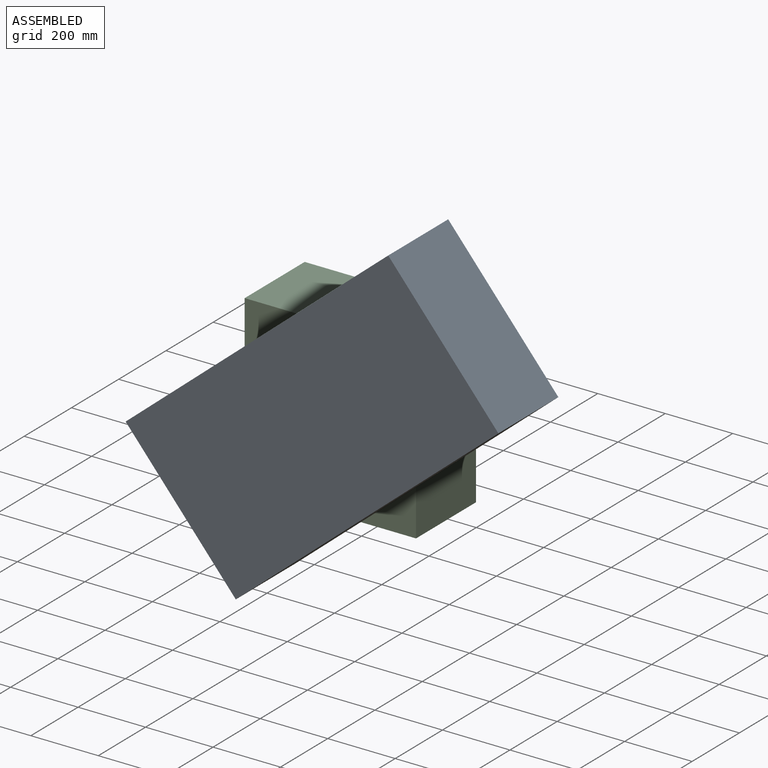
[diagram: assembled view]
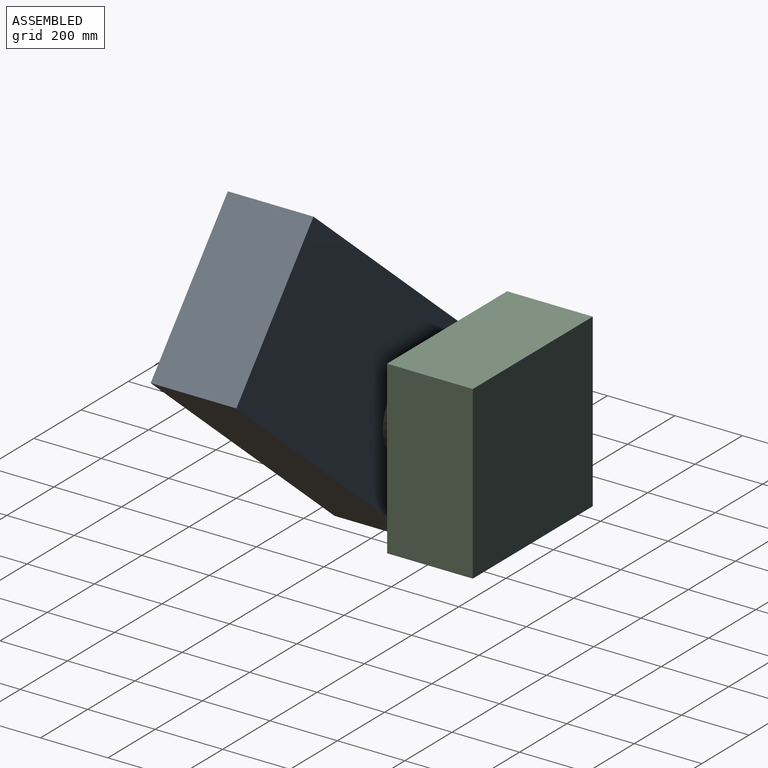
[diagram: assembled view, second angle]
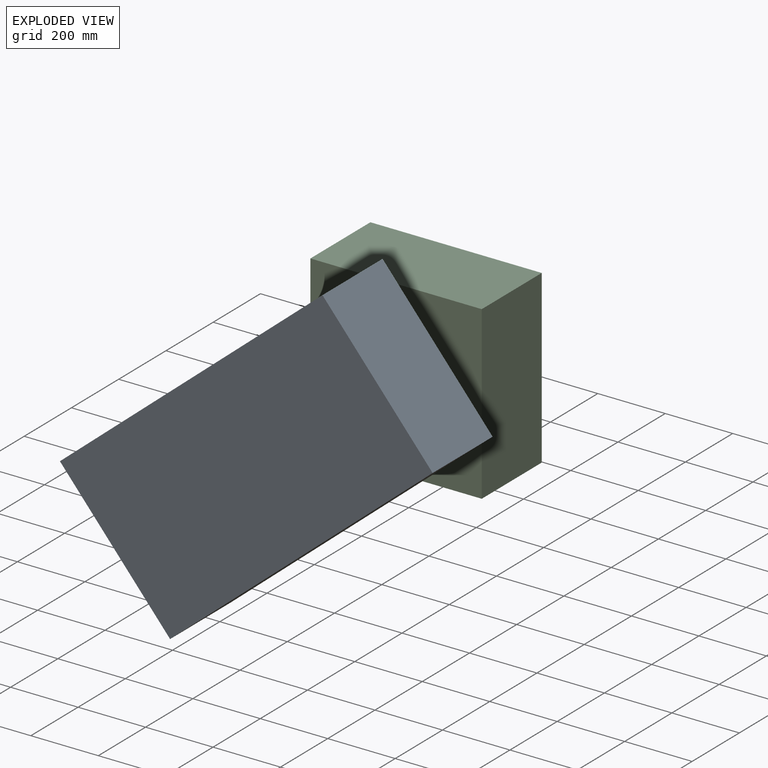
[diagram: exploded view]
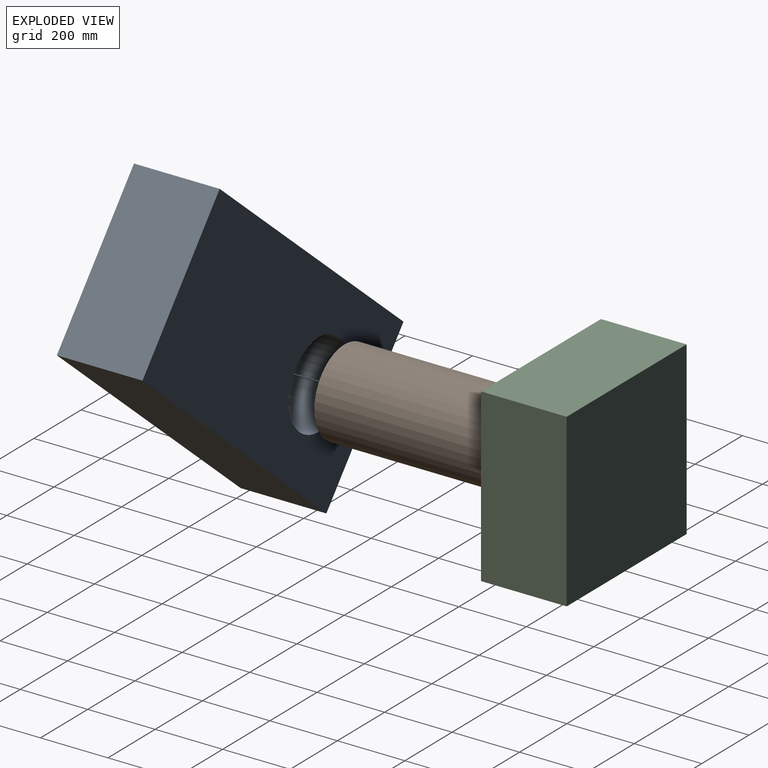
[diagram: exploded view, second angle]
ASSEMBLY  parts=3 mates=3
PART A: 8 faces, bbox 1016x254x508 mm
  f0: plane 508x254mm, normal (-1,0,0), area 129032mm2, adj f1,f3,f4,f5
  f1: plane 1016x254mm, normal (0,0,-1), area 258064mm2, adj f0,f2,f4,f5
  f2: plane 508x254mm, normal (1,0,0), area 129032mm2, adj f1,f3,f4,f5
  f3: plane 1016x254mm, normal (0,0,1), area 258064mm2, adj f0,f2,f4,f5
  f4: plane 1016x508mm, normal (0,-1,0), area 465457.3mm2, adj f0,f1,f2,f3,f6
  f5: plane 1016x508mm, normal (0,1,0), area 516128mm2, adj f0,f1,f2,f3
  f6: cylinder r=127mm len=254mm, axis (0,-1,0), area 162146.4mm2, adj f4,f7
  f7: plane 254x254mm, normal (0,-1,0), area 50670.7mm2, adj f6
PART B: 3 faces, bbox 254x508x254 mm
  f0: cylinder r=127mm len=508mm, axis (0,1,0), area 405366mm2, adj f1,f2
  f1: plane 254x254mm, normal (0,-1,0), area 50670.7mm2, adj f0
  f2: plane 254x254mm, normal (0,1,0), area 50670.7mm2, adj f0
PART C: 8 faces, bbox 508x254x508 mm
  f0: plane 508x254mm, normal (-1,0,0), area 129032mm2, adj f1,f3,f4,f5
  f1: plane 508x254mm, normal (0,0,-1), area 129032mm2, adj f0,f2,f4,f5
  f2: plane 508x254mm, normal (1,0,0), area 129032mm2, adj f1,f3,f4,f5
  f3: plane 508x254mm, normal (0,0,1), area 129032mm2, adj f0,f2,f4,f5
  f4: plane 508x508mm, normal (0,-1,0), area 207393.3mm2, adj f0,f1,f2,f3,f6
  f5: plane 508x508mm, normal (0,1,0), area 258064mm2, adj f0,f1,f2,f3
  f6: cylinder r=127mm len=254mm, axis (0,-1,0), area 162146.4mm2, adj f4,f7
  f7: plane 254x254mm, normal (0,-1,0), area 50670.7mm2, adj f6
PLACE A rot(axis=(0.34,0,-0.94),180deg) t=(220.17,-316.33,58.74)mm
PLACE B t=(220.17,242.47,58.74)mm
PLACE C t=(220.17,293.27,58.74)mm fixed
MATE planar B.f0 <-> C.f6  axis (0,1,0) through (220.17,242.47,58.74)mm
MATE revolute B.f0 <-> C.f6  axis (0,1,0) through (220.17,242.47,58.74)mm
MATE revolute A.f6 <-> B.f0  axis (0,1,0) through (220.17,-265.53,58.74)mm
